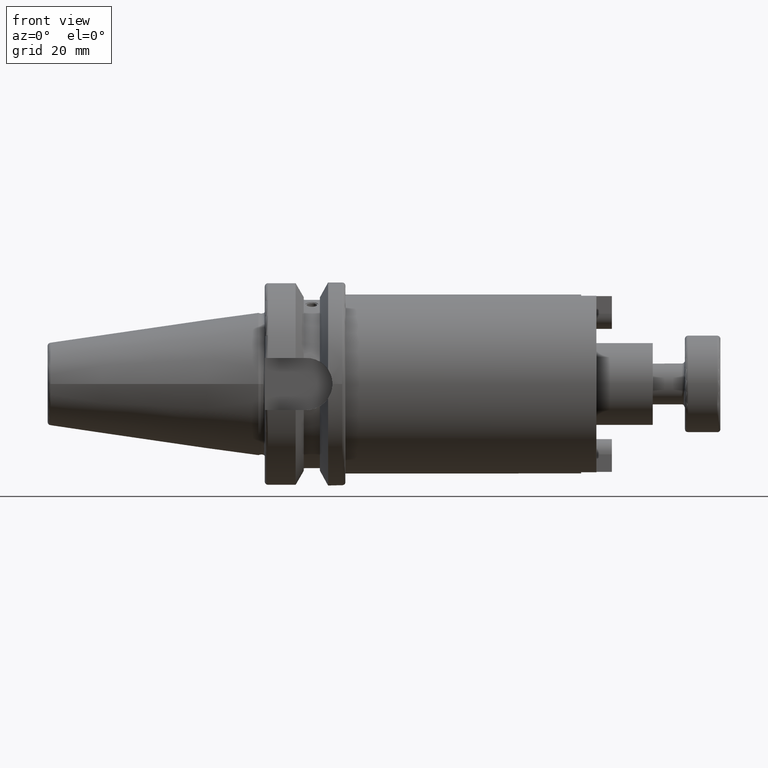
[diagram: clean part render]
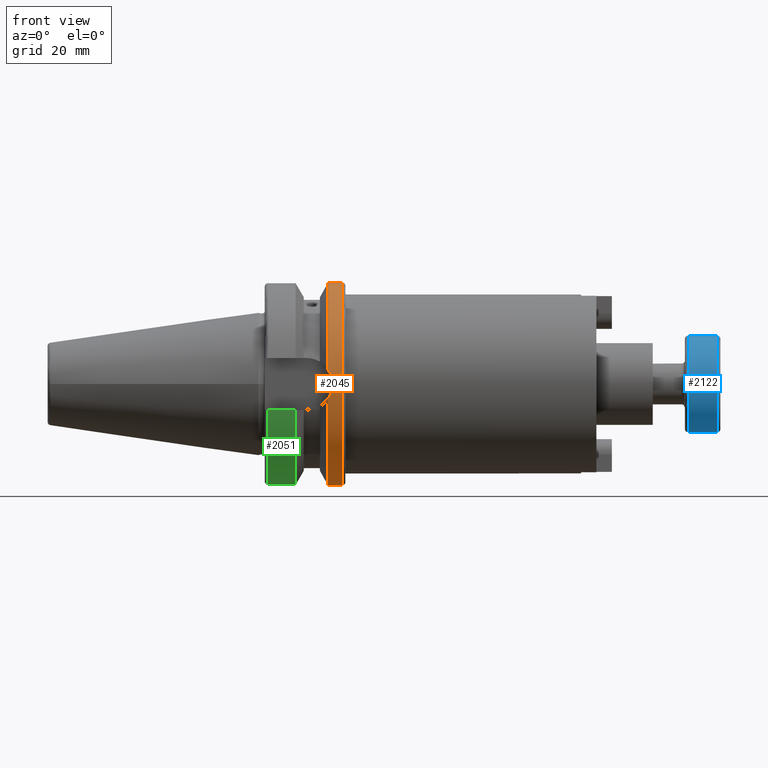
[diagram: same view with three faces highlighted in distinct colors, each labeled with its STEP entity id]
A machine part, front view with three faces highlighted in distinct colors.
Their STEP definitions:

[orange] entity #2045 — the highlighted cylindrical surface (bore or boss wall) has radius 31.5 mm, axis along (1, 0, 0).
#103=B_SPLINE_CURVE_WITH_KNOTS('',3,(#3517,#3518,#3519,#3520,#3521,#3522),
 .UNSPECIFIED.,.F.,.F.,(4,2,4),(1.21877751840372,1.52344857393281,1.67526011710938),
 .UNSPECIFIED.);
#104=B_SPLINE_CURVE_WITH_KNOTS('',3,(#3524,#3525,#3526,#3527,#3528,#3529),
 .UNSPECIFIED.,.F.,.F.,(4,2,4),(0.762294919698049,0.914106462874623,1.21877751840372),
 .UNSPECIFIED.);
#109=B_SPLINE_CURVE_WITH_KNOTS('',3,(#3611,#3612,#3613,#3614,#3615,#3616,
#3617,#3618,#3619,#3620),.UNSPECIFIED.,.F.,.F.,(4,2,2,2,4),(3.19984995650548,
3.35166149968205,3.65633255521115,3.96100361074024,4.11281515391681),
 .UNSPECIFIED.);
#164=CYLINDRICAL_SURFACE('',#2323,31.5);
#215=CIRCLE('',#2324,31.5);
#216=CIRCLE('',#2325,31.5);
#217=CIRCLE('',#2326,31.5);
#218=CIRCLE('',#2327,31.5);
#353=FACE_OUTER_BOUND('',#487,.T.);
#487=EDGE_LOOP('',(#1568,#1569,#1570,#1571,#1572,#1573,#1574,#1575,#1576));
#637=LINE('',#3607,#771);
#771=VECTOR('',#2744,31.5);
#920=VERTEX_POINT('',#3509);
#921=VERTEX_POINT('',#3516);
#922=VERTEX_POINT('',#3523);
#940=VERTEX_POINT('',#3604);
#941=VERTEX_POINT('',#3605);
#942=VERTEX_POINT('',#3608);
#943=VERTEX_POINT('',#3610);
#1150=EDGE_CURVE('',#921,#920,#103,.T.);
#1151=EDGE_CURVE('',#922,#921,#104,.T.);
#1173=EDGE_CURVE('',#940,#941,#215,.T.);
#1174=EDGE_CURVE('',#940,#921,#637,.T.);
#1175=EDGE_CURVE('',#920,#942,#216,.T.);
#1176=EDGE_CURVE('',#942,#943,#109,.T.);
#1177=EDGE_CURVE('',#943,#922,#217,.T.);
#1178=EDGE_CURVE('',#941,#940,#218,.T.);
#1568=ORIENTED_EDGE('',*,*,#1173,.F.);
#1569=ORIENTED_EDGE('',*,*,#1174,.T.);
#1570=ORIENTED_EDGE('',*,*,#1150,.T.);
#1571=ORIENTED_EDGE('',*,*,#1175,.T.);
#1572=ORIENTED_EDGE('',*,*,#1176,.T.);
#1573=ORIENTED_EDGE('',*,*,#1177,.T.);
#1574=ORIENTED_EDGE('',*,*,#1151,.T.);
#1575=ORIENTED_EDGE('',*,*,#1174,.F.);
#1576=ORIENTED_EDGE('',*,*,#1178,.F.);
#2045=ADVANCED_FACE('',(#353),#164,.T.);
#2323=AXIS2_PLACEMENT_3D('',#3603,#2740,#2741);
#2324=AXIS2_PLACEMENT_3D('',#3606,#2742,#2743);
#2325=AXIS2_PLACEMENT_3D('',#3609,#2745,#2746);
#2326=AXIS2_PLACEMENT_3D('',#3621,#2747,#2748);
#2327=AXIS2_PLACEMENT_3D('',#3622,#2749,#2750);
#2740=DIRECTION('center_axis',(1.,0.,0.));
#2741=DIRECTION('ref_axis',(0.,1.,0.));
#2742=DIRECTION('center_axis',(1.,0.,0.));
#2743=DIRECTION('ref_axis',(0.,0.,-1.));
#2744=DIRECTION('',(-1.,0.,0.));
#2745=DIRECTION('center_axis',(1.,0.,0.));
#2746=DIRECTION('ref_axis',(0.,0.,-1.));
#2747=DIRECTION('center_axis',(1.,0.,0.));
#2748=DIRECTION('ref_axis',(0.,0.,-1.));
#2749=DIRECTION('center_axis',(1.,0.,0.));
#2750=DIRECTION('ref_axis',(0.,0.,-1.));
#3509=CARTESIAN_POINT('',(21.6309636926618,-31.1782420264945,-4.49079326370462));
#3516=CARTESIAN_POINT('',(23.,-31.5,-2.34515234289152E-15));
#3517=CARTESIAN_POINT('Ctrl Pts',(23.,-31.5,-1.11022302462516E-15));
#3518=CARTESIAN_POINT('Ctrl Pts',(23.,-31.5,-1.01557018509698));
#3519=CARTESIAN_POINT('Ctrl Pts',(22.7961189876535,-31.445974204441,-2.09580170425552));
#3520=CARTESIAN_POINT('Ctrl Pts',(22.1796133812044,-31.2997625705024,-3.5806535819887));
#3521=CARTESIAN_POINT('Ctrl Pts',(21.92482980253,-31.2412125047166,-4.05360796141052));
#3522=CARTESIAN_POINT('Ctrl Pts',(21.6309636926618,-31.1782420264945,-4.49079326370462));
#3523=CARTESIAN_POINT('',(21.6309636926618,-31.1782420264945,4.49079326370462));
#3524=CARTESIAN_POINT('Ctrl Pts',(21.6309636926618,-31.1782420264945,4.49079326370462));
#3525=CARTESIAN_POINT('Ctrl Pts',(21.92482980253,-31.2412125047166,4.05360796141052));
#3526=CARTESIAN_POINT('Ctrl Pts',(22.1796133812044,-31.2997625705024,3.5806535819887));
#3527=CARTESIAN_POINT('Ctrl Pts',(22.7961189876535,-31.445974204441,2.09580170425552));
#3528=CARTESIAN_POINT('Ctrl Pts',(23.,-31.5,1.01557018509698));
#3529=CARTESIAN_POINT('Ctrl Pts',(23.,-31.5,-1.11022302462516E-15));
#3603=CARTESIAN_POINT('Origin',(23.8154818463309,0.,0.));
#3604=CARTESIAN_POINT('',(26.,-31.5,-3.85763741731416E-15));
#3605=CARTESIAN_POINT('',(26.,-3.85763741731416E-15,31.5));
#3606=CARTESIAN_POINT('Origin',(26.,0.,0.));
#3607=CARTESIAN_POINT('',(23.8154818463309,-31.5,-3.85763741731416E-15));
#3608=CARTESIAN_POINT('',(21.6309636926618,31.1782420264945,-4.49079326370462));
#3609=CARTESIAN_POINT('Origin',(21.6309636926618,0.,0.));
#3610=CARTESIAN_POINT('',(21.6309636926618,31.1782420264945,4.49079326370462));
#3611=CARTESIAN_POINT('Ctrl Pts',(21.6309636926618,31.1782420264945,-4.49079326370462));
#3612=CARTESIAN_POINT('Ctrl Pts',(21.92482980253,31.2412125047166,-4.05360796141052));
#3613=CARTESIAN_POINT('Ctrl Pts',(22.1796133812043,31.2997625705024,-3.5806535819887));
#3614=CARTESIAN_POINT('Ctrl Pts',(22.7961189876535,31.445974204441,-2.09580170425552));
#3615=CARTESIAN_POINT('Ctrl Pts',(23.,31.5,-1.01557018509698));
#3616=CARTESIAN_POINT('Ctrl Pts',(23.,31.5,1.01557018509698));
#3617=CARTESIAN_POINT('Ctrl Pts',(22.7961189876535,31.445974204441,2.09580170425552));
#3618=CARTESIAN_POINT('Ctrl Pts',(22.1796133812044,31.2997625705024,3.5806535819887));
#3619=CARTESIAN_POINT('Ctrl Pts',(21.92482980253,31.2412125047166,4.05360796141052));
#3620=CARTESIAN_POINT('Ctrl Pts',(21.6309636926618,31.1782420264945,4.49079326370462));
#3621=CARTESIAN_POINT('Origin',(21.6309636926618,0.,0.));
#3622=CARTESIAN_POINT('Origin',(26.,0.,0.));

[blue] entity #2122 — the highlighted cylindrical surface (bore or boss wall) has radius 15 mm, axis along (-1, -0, -0).
#180=CYLINDRICAL_SURFACE('',#2478,15.);
#288=CIRCLE('',#2476,15.);
#289=CIRCLE('',#2477,15.);
#290=CIRCLE('',#2479,15.);
#291=CIRCLE('',#2480,15.);
#430=FACE_OUTER_BOUND('',#578,.T.);
#578=EDGE_LOOP('',(#1927,#1928,#1929,#1930,#1931,#1932));
#715=LINE('',#4024,#849);
#849=VECTOR('',#3130,15.);
#1043=VERTEX_POINT('',#4017);
#1044=VERTEX_POINT('',#4019);
#1045=VERTEX_POINT('',#4023);
#1046=VERTEX_POINT('',#4025);
#1340=EDGE_CURVE('',#1043,#1044,#288,.T.);
#1341=EDGE_CURVE('',#1044,#1043,#289,.T.);
#1342=EDGE_CURVE('',#1044,#1045,#715,.T.);
#1343=EDGE_CURVE('',#1046,#1045,#290,.T.);
#1344=EDGE_CURVE('',#1045,#1046,#291,.T.);
#1927=ORIENTED_EDGE('',*,*,#1341,.F.);
#1928=ORIENTED_EDGE('',*,*,#1342,.T.);
#1929=ORIENTED_EDGE('',*,*,#1343,.F.);
#1930=ORIENTED_EDGE('',*,*,#1344,.F.);
#1931=ORIENTED_EDGE('',*,*,#1342,.F.);
#1932=ORIENTED_EDGE('',*,*,#1340,.F.);
#2122=ADVANCED_FACE('',(#430),#180,.T.);
#2476=AXIS2_PLACEMENT_3D('',#4020,#3124,#3125);
#2477=AXIS2_PLACEMENT_3D('',#4021,#3126,#3127);
#2478=AXIS2_PLACEMENT_3D('',#4022,#3128,#3129);
#2479=AXIS2_PLACEMENT_3D('',#4026,#3131,#3132);
#2480=AXIS2_PLACEMENT_3D('',#4027,#3133,#3134);
#3124=DIRECTION('center_axis',(1.,0.,0.));
#3125=DIRECTION('ref_axis',(0.,-1.,1.83697019872103E-16));
#3126=DIRECTION('center_axis',(1.,0.,0.));
#3127=DIRECTION('ref_axis',(0.,-1.,1.83697019872103E-16));
#3128=DIRECTION('center_axis',(1.,0.,0.));
#3129=DIRECTION('ref_axis',(0.,1.,0.));
#3130=DIRECTION('',(-1.,0.,0.));
#3131=DIRECTION('center_axis',(-1.,0.,0.));
#3132=DIRECTION('ref_axis',(0.,-1.,1.83697019872103E-16));
#3133=DIRECTION('center_axis',(-1.,0.,0.));
#3134=DIRECTION('ref_axis',(0.,-1.,1.83697019872103E-16));
#4017=CARTESIAN_POINT('',(10.,-1.83697019872103E-15,15.));
#4019=CARTESIAN_POINT('',(10.,-15.,-1.83697019872103E-15));
#4020=CARTESIAN_POINT('Origin',(10.,0.,0.));
#4021=CARTESIAN_POINT('Origin',(10.,0.,0.));
#4022=CARTESIAN_POINT('Origin',(5.5,0.,0.));
#4023=CARTESIAN_POINT('',(1.,-15.,-1.83697019872103E-15));
#4024=CARTESIAN_POINT('',(5.5,-15.,-1.83697019872103E-15));
#4025=CARTESIAN_POINT('',(1.,-1.83697019872103E-15,15.));
#4026=CARTESIAN_POINT('Origin',(1.,0.,0.));
#4027=CARTESIAN_POINT('Origin',(1.,0.,0.));

[green] entity #2051 — the highlighted cylindrical surface (partial cylindrical patch) has radius 31.5 mm, axis along (1, 0, 0).
#166=CYLINDRICAL_SURFACE('',#2338,31.5);
#223=CIRCLE('',#2337,31.5000000000001);
#224=CIRCLE('',#2339,31.5);
#359=FACE_OUTER_BOUND('',#494,.T.);
#494=EDGE_LOOP('',(#1601,#1602,#1603,#1604));
#634=LINE('',#3595,#768);
#641=LINE('',#3660,#775);
#768=VECTOR('',#2735,10.);
#775=VECTOR('',#2778,10.);
#937=VERTEX_POINT('',#3583);
#938=VERTEX_POINT('',#3594);
#949=VERTEX_POINT('',#3652);
#950=VERTEX_POINT('',#3658);
#1169=EDGE_CURVE('',#938,#937,#634,.T.);
#1188=EDGE_CURVE('',#938,#949,#223,.T.);
#1190=EDGE_CURVE('',#937,#950,#224,.T.);
#1191=EDGE_CURVE('',#950,#949,#641,.T.);
#1601=ORIENTED_EDGE('',*,*,#1169,.T.);
#1602=ORIENTED_EDGE('',*,*,#1190,.T.);
#1603=ORIENTED_EDGE('',*,*,#1191,.T.);
#1604=ORIENTED_EDGE('',*,*,#1188,.F.);
#2051=ADVANCED_FACE('',(#359),#166,.T.);
#2337=AXIS2_PLACEMENT_3D('',#3653,#2772,#2773);
#2338=AXIS2_PLACEMENT_3D('',#3657,#2774,#2775);
#2339=AXIS2_PLACEMENT_3D('',#3659,#2776,#2777);
#2735=DIRECTION('',(-1.,0.,0.));
#2772=DIRECTION('center_axis',(1.,0.,0.));
#2773=DIRECTION('ref_axis',(0.,0.,-1.));
#2774=DIRECTION('center_axis',(1.,0.,0.));
#2775=DIRECTION('ref_axis',(0.,1.,0.));
#2776=DIRECTION('center_axis',(1.,0.,0.));
#2777=DIRECTION('ref_axis',(0.,0.,-1.));
#2778=DIRECTION('',(1.,0.,0.));
#3583=CARTESIAN_POINT('',(2.99999999999999,-30.4540227227866,-8.05));
#3594=CARTESIAN_POINT('',(11.5690363073382,-30.4540227227866,-8.05));
#3595=CARTESIAN_POINT('',(7.28451815366907,-30.4540227227866,-8.05));
#3652=CARTESIAN_POINT('',(11.5690363073382,30.4540227227866,-8.05));
#3653=CARTESIAN_POINT('Origin',(11.5690363073382,0.,0.));
#3657=CARTESIAN_POINT('Origin',(7.28451815366907,0.,0.));
#3658=CARTESIAN_POINT('',(2.99999999999999,30.4540227227866,-8.05));
#3659=CARTESIAN_POINT('Origin',(2.99999999999999,0.,0.));
#3660=CARTESIAN_POINT('',(7.28451815366907,30.4540227227866,-8.05));